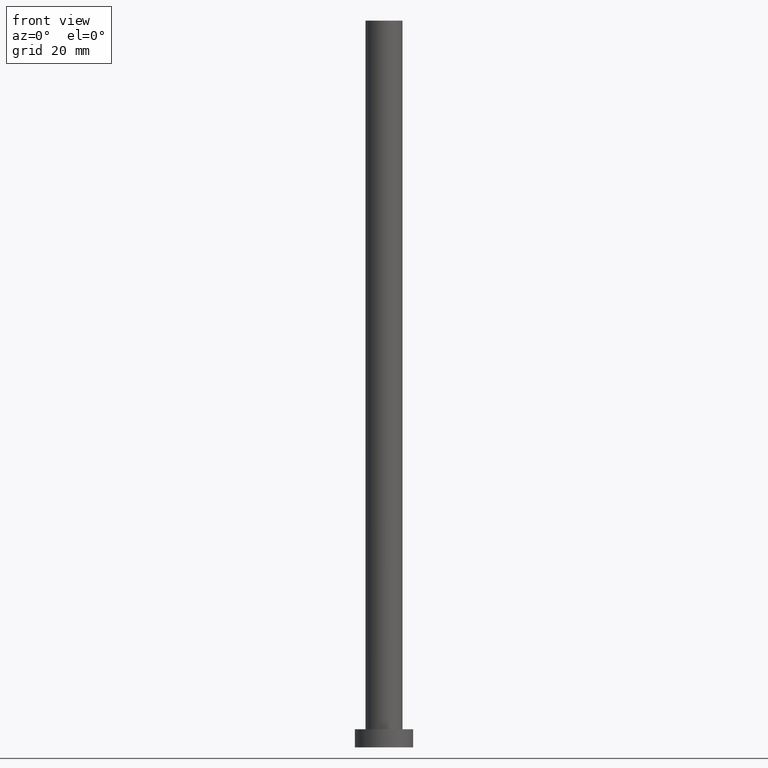
[diagram: clean part render]
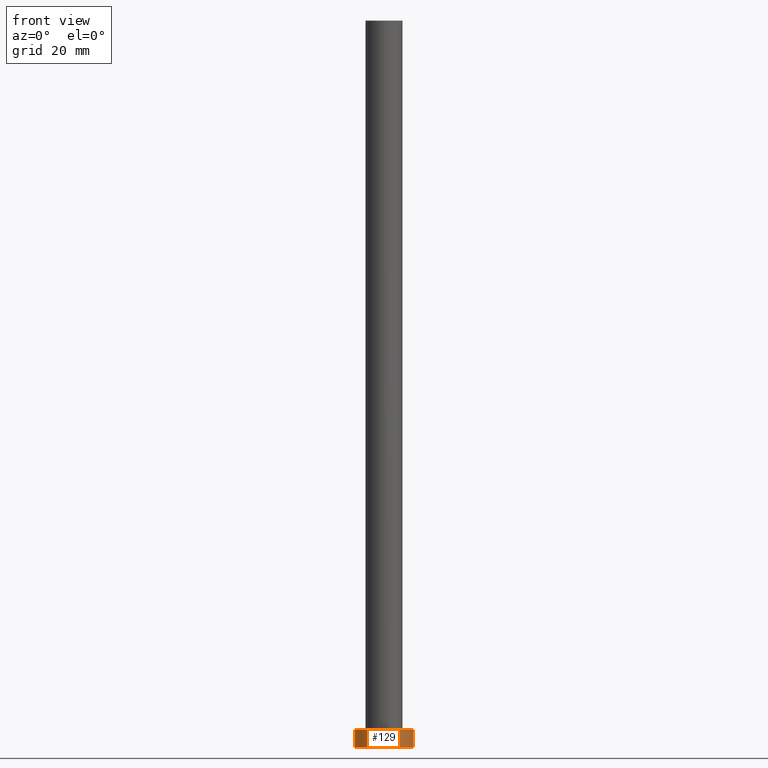
[diagram: same view with one face highlighted and labeled with its STEP entity id]
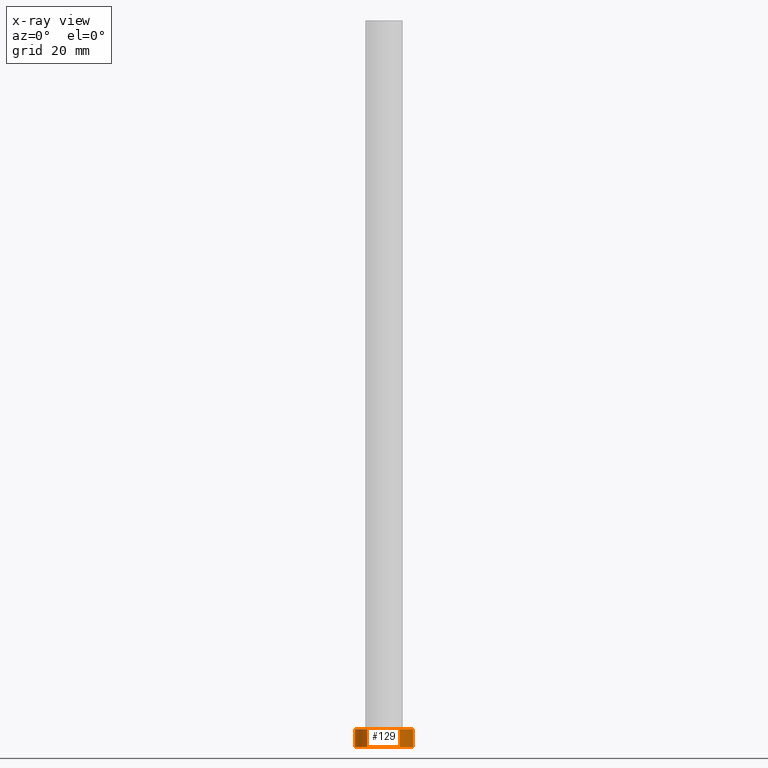
[diagram: x-ray of the same camera — body ghosted, the highlighted face saturated]
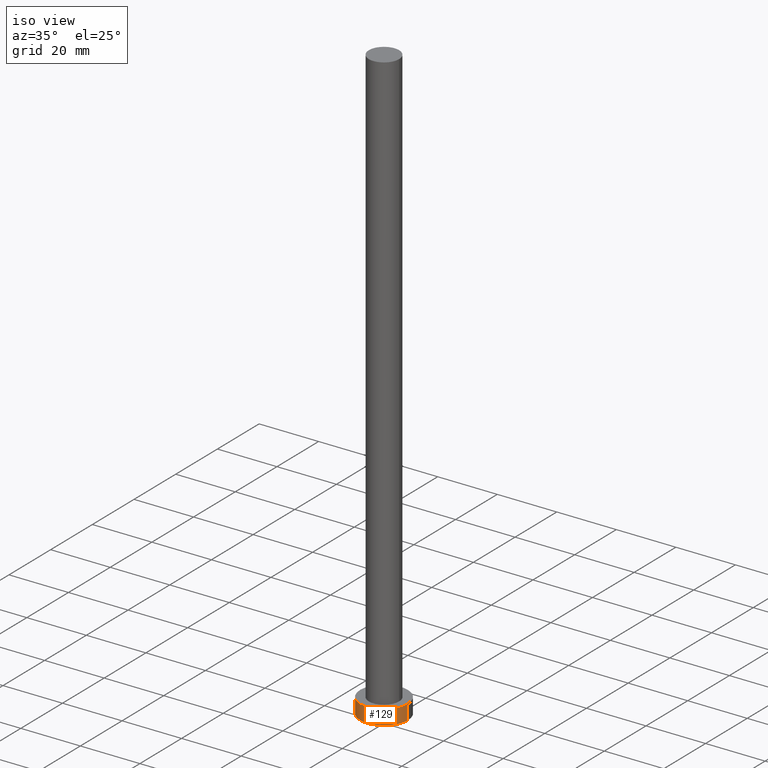
[diagram: same view with one face highlighted and labeled with its STEP entity id]
A machine part, front view. The second image highlights one B-rep face of the part: STEP entity #129.
The next image is the same camera in x-ray: the body ghosted, the highlighted face saturated — about 0% of this face is hidden behind the body in this view.
A second angle (iso view) of the same face is appended — the face is thin or edge-on in the first view.
In plain terms, the highlighted cylindrical surface (edge-blend (fillet) strip) has radius 8 mm, axis along (-0, -0, -1).
Its self-contained STEP definition (entity closure, byte-faithful):
#2 = ORIENTED_EDGE ( 'NONE', *, *, #25, .F. ) ;
#4 = EDGE_CURVE ( 'NONE', #140, #40, #86, .T. ) ;
#5 = CIRCLE ( 'NONE', #173, 8.000000000000000000 ) ;
#18 = DIRECTION ( 'NONE',  ( -1.000000000000000000, 0.000000000000000000, 0.000000000000000000 ) ) ;
#25 = EDGE_CURVE ( 'NONE', #209, #223, #51, .T. ) ;
#32 = AXIS2_PLACEMENT_3D ( 'NONE', #127, #191, #18 ) ;
#35 = CARTESIAN_POINT ( 'NONE',  ( 0.000000000000000000, 0.000000000000000000, 0.000000000000000000 ) ) ;
#40 = VERTEX_POINT ( 'NONE', #246 ) ;
#51 = LINE ( 'NONE', #214, #204 ) ;
#52 = DIRECTION ( 'NONE',  ( 0.000000000000000000, 0.000000000000000000, 1.000000000000000000 ) ) ;
#63 = DIRECTION ( 'NONE',  ( -0.000000000000000000, -0.000000000000000000, -1.000000000000000000 ) ) ;
#65 = CARTESIAN_POINT ( 'NONE',  ( 8.000000000000000000, 9.797174393178825657E-16, 5.000000000000000000 ) ) ;
#72 = DIRECTION ( 'NONE',  ( 0.000000000000000000, 0.000000000000000000, 1.000000000000000000 ) ) ;
#76 = AXIS2_PLACEMENT_3D ( 'NONE', #200, #72, #124 ) ;
#86 = LINE ( 'NONE', #155, #252 ) ;
#92 = EDGE_LOOP ( 'NONE', ( #2, #101, #251, #178 ) ) ;
#101 = ORIENTED_EDGE ( 'NONE', *, *, #239, .F. ) ;
#124 = DIRECTION ( 'NONE',  ( 1.000000000000000000, 0.000000000000000000, 0.000000000000000000 ) ) ;
#125 = FACE_OUTER_BOUND ( 'NONE', #92, .T. ) ;
#127 = CARTESIAN_POINT ( 'NONE',  ( 0.000000000000000000, 0.000000000000000000, 5.000000000000000000 ) ) ;
#129 = ADVANCED_FACE ( 'NONE', ( #125 ), #207, .T. ) ;
#140 = VERTEX_POINT ( 'NONE', #159 ) ;
#154 = EDGE_CURVE ( 'NONE', #40, #223, #5, .T. ) ;
#155 = CARTESIAN_POINT ( 'NONE',  ( -8.000000000000000000, 0.000000000000000000, 5.000000000000000000 ) ) ;
#159 = CARTESIAN_POINT ( 'NONE',  ( -8.000000000000000000, 0.000000000000000000, 5.000000000000000000 ) ) ;
#173 = AXIS2_PLACEMENT_3D ( 'NONE', #35, #52, #197 ) ;
#176 = CIRCLE ( 'NONE', #76, 8.000000000000000000 ) ;
#178 = ORIENTED_EDGE ( 'NONE', *, *, #154, .T. ) ;
#191 = DIRECTION ( 'NONE',  ( -0.000000000000000000, -0.000000000000000000, -1.000000000000000000 ) ) ;
#197 = DIRECTION ( 'NONE',  ( 1.000000000000000000, 0.000000000000000000, 0.000000000000000000 ) ) ;
#200 = CARTESIAN_POINT ( 'NONE',  ( 0.000000000000000000, 0.000000000000000000, 5.000000000000000000 ) ) ;
#204 = VECTOR ( 'NONE', #63, 1000.000000000000000 ) ;
#207 = CYLINDRICAL_SURFACE ( 'NONE', #32, 8.000000000000000000 ) ;
#209 = VERTEX_POINT ( 'NONE', #65 ) ;
#214 = CARTESIAN_POINT ( 'NONE',  ( 8.000000000000000000, 9.797174393178825657E-16, 5.000000000000000000 ) ) ;
#223 = VERTEX_POINT ( 'NONE', #247 ) ;
#234 = DIRECTION ( 'NONE',  ( -0.000000000000000000, -0.000000000000000000, -1.000000000000000000 ) ) ;
#239 = EDGE_CURVE ( 'NONE', #140, #209, #176, .T. ) ;
#246 = CARTESIAN_POINT ( 'NONE',  ( -8.000000000000000000, 0.000000000000000000, 0.000000000000000000 ) ) ;
#247 = CARTESIAN_POINT ( 'NONE',  ( 8.000000000000000000, 9.797174393178825657E-16, 0.000000000000000000 ) ) ;
#251 = ORIENTED_EDGE ( 'NONE', *, *, #4, .T. ) ;
#252 = VECTOR ( 'NONE', #234, 1000.000000000000000 ) ;